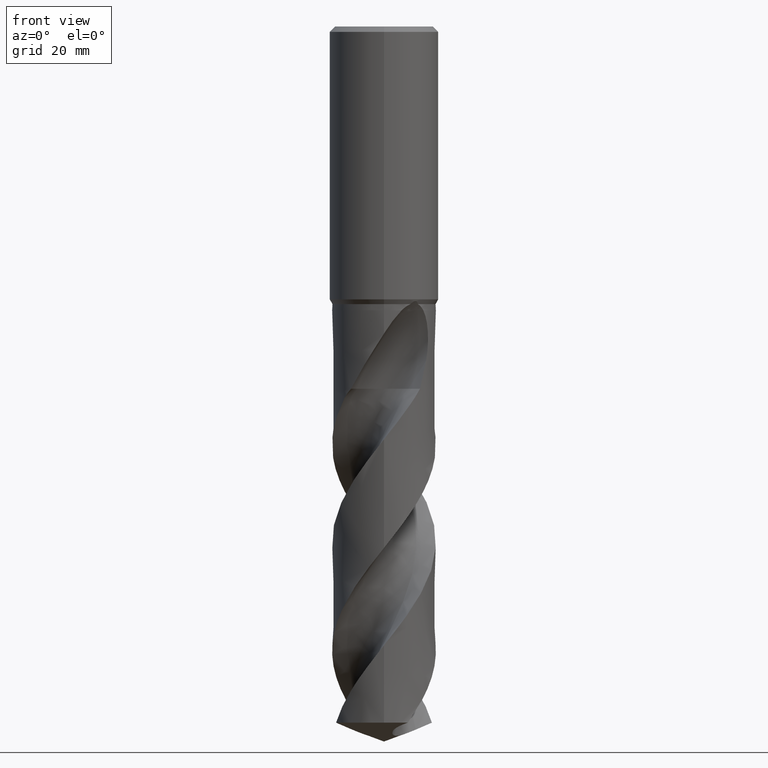
[diagram: clean part render]
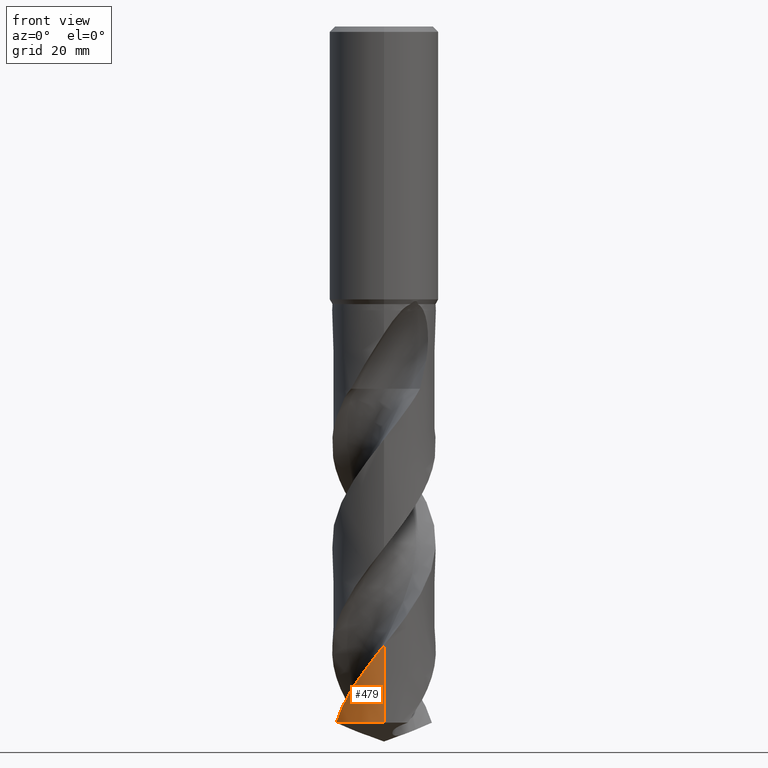
[diagram: same view with one face highlighted and labeled with its STEP entity id]
A machine part, front view. The second image highlights one B-rep face of the part: STEP entity #479.
In plain terms, the highlighted conical surface has half-angle 0 deg.
Its self-contained STEP definition (entity closure, byte-faithful):
#321=EDGE_CURVE('',#641,#747,#835,.T.);
#323=EDGE_CURVE('',#747,#523,#837,.T.);
#479=ADVANCED_FACE('',(#1007),#1008,.T.);
#485=EDGE_CURVE('',#641,#523,#1014,.T.);
#523=VERTEX_POINT('',#1055);
#641=VERTEX_POINT('',#1186);
#747=VERTEX_POINT('',#1299);
#835=LINE('',#2308,#2309);
#837=B_SPLINE_CURVE_WITH_KNOTS('',3,(#2312,#2313,#2314,#2315,#2316,#2317,#2318,#2319,#2320,#2321,#2322,#2323,#2324,#2325,#2326,#2327,#2328,#2329,#2330,#2331,#2332,#2333,#2334,#2335,#2336,#2337,#2338,#2339,#2340,#2341,#2342,#2343,#2344,#2345,#2346,#2347,#2348,#2349,#2350,#2351,#2352,#2353,#2354,#2355,#2356,#2357,#2358,#2359,#2360,#2361,#2362,#2363,#2364,#2365,#2366,#2367,#2368,#2369,#2370,#2371,#2372,#2373,#2374,#2375,#2376,#2377,#2378,#2379,#2380,#2381,#2382,#2383,#2384,#2385,#2386,#2387,#2388,#2389,#2390,#2391,#2392,#2393,#2394,#2395,#2396,#2397,#2398,#2399,#2400,#2401,#2402,#2403,#2404,#2405),.UNSPECIFIED.,.F.,.F.,(4,2,2,2,2,2,2,2,2,2,2,2,2,2,2,2,2,2,2,2,2,2,2,2,2,2,2,2,2,2,2,2,2,2,2,2,2,2,2,2,2,2,2,2,2,2,4),(0.0,0.251873114745319,1.49003797662436,1.88508295611504,2.13092462729175,2.35716562531013,3.13353898619032,4.18013328612654,4.8391896154843,5.93775068866211,6.81496746771318,8.02790693801513,9.75036124954665,13.2764121119158,14.4454626413057,15.6066048524763,17.9265469814777,19.0963696375069,21.4109942116154,23.7401063518811,26.0705932205949,28.3953471666892,29.5638751434541,30.7172765029423,33.0360551046798,34.2055673908724,36.5191789956901,38.8491949944035,41.1763968547088,43.5015904945778,44.6696144105601,45.820993287927,48.1405526795639,49.3096704018559,51.6196709283864,53.9501572730986,56.2743507798361,58.600024314909,59.68138169211,60.6859259939135,64.4629973942198,65.8887789725559,68.392227658279,69.3331984067516,70.9795003736366,73.4517760775509,75.9230375517967),.UNSPECIFIED.);
#1007=FACE_OUTER_BOUND('',#4228,.T.);
#1008=CONICAL_SURFACE('',#4229,9.49995,1.32376195591355E-006);
#1014=CIRCLE('',#4244,9.5);
#1055=CARTESIAN_POINT('',(-8.77829669865339,-3.63201143588659,-127.542282774471));
#1186=CARTESIAN_POINT('',(1.16176566323862E-015,-9.5,-127.542282774471));
#1299=CARTESIAN_POINT('',(1.56799148186068E-014,-9.49998125251191,-113.380002318758));
#2308=CARTESIAN_POINT('',(1.16175954020685E-015,-9.49995,-89.7711413872355));
#2309=VECTOR('',#5714,1.0);
#2312=CARTESIAN_POINT('',(-6.60317748529335,6.82982492497779,-66.369));
#2313=CARTESIAN_POINT('',(-6.56732896463211,6.86448393843007,-66.4365465215058));
#2314=CARTESIAN_POINT('',(-6.53115245772172,6.89891447528343,-66.504067560524));
#2315=CARTESIAN_POINT('',(-6.31491153119111,7.10147783278723,-66.9030783631882));
#2316=CARTESIAN_POINT('',(-6.12978802051606,7.26225138847447,-67.225166283119));
#2317=CARTESIAN_POINT('',(-5.86478478241706,7.47392289166335,-67.6554609278217));
#2318=CARTESIAN_POINT('',(-5.79982235770281,7.52445502014539,-67.7588390470493));
#2319=CARTESIAN_POINT('',(-5.69263840200485,7.60559187487801,-67.9264725840121));
#2320=CARTESIAN_POINT('',(-5.65119667331119,7.63643642634561,-67.9905997011124));
#2321=CARTESIAN_POINT('',(-5.57092280035602,7.69516709509626,-68.1136881015298));
#2322=CARTESIAN_POINT('',(-5.53220069959387,7.72305285628719,-68.1725699291273));
#2323=CARTESIAN_POINT('',(-5.35943519596365,7.84549903435116,-68.4335023069995));
#2324=CARTESIAN_POINT('',(-5.223577808885,7.93666342126009,-68.6347568907285));
#2325=CARTESIAN_POINT('',(-4.89238725613242,8.14639367297698,-69.1219739842731));
#2326=CARTESIAN_POINT('',(-4.70046423870064,8.25854854144445,-69.4013125337165));
#2327=CARTESIAN_POINT('',(-4.38139139414728,8.43039547211335,-69.861322458339));
#2328=CARTESIAN_POINT('',(-4.25674873951694,8.4940094764569,-70.0396320764643));
#2329=CARTESIAN_POINT('',(-3.92093419463609,8.65616358943372,-70.5145064642179));
#2330=CARTESIAN_POINT('',(-3.70713195136983,8.74987848816062,-70.8110692273253));
#2331=CARTESIAN_POINT('',(-3.3161625420964,8.90429584709822,-71.3434772458968));
#2332=CARTESIAN_POINT('',(-3.14080204602096,8.96765527605901,-71.5785590650312));
#2333=CARTESIAN_POINT('',(-2.71796832550692,9.10647865854467,-72.1400085106308));
#2334=CARTESIAN_POINT('',(-2.46950387412205,9.17696958552703,-72.4655141253206));
#2335=CARTESIAN_POINT('',(-1.86220314811729,9.32282948984543,-73.2544406543365));
#2336=CARTESIAN_POINT('',(-1.50154171281122,9.38764179667307,-73.7180482679948));
#2337=CARTESIAN_POINT('',(-0.394982224153874,9.52120681604962,-75.1295685211574));
#2338=CARTESIAN_POINT('',(0.356824110620436,9.52277616876354,-76.0740020629149));
#2339=CARTESIAN_POINT('',(1.34820699470703,9.40706326233914,-77.3357970957648));
#2340=CARTESIAN_POINT('',(1.5938064241418,9.36857869882808,-77.6498578442771));
#2341=CARTESIAN_POINT('',(2.07972503470747,9.27277805156567,-78.2761642780358));
#2342=CARTESIAN_POINT('',(2.31982935373545,9.21563886960738,-78.5881102020836));
#2343=CARTESIAN_POINT('',(3.0320026259064,9.01657466987166,-79.524144337267));
#2344=CARTESIAN_POINT('',(3.49569350105118,8.84714670114994,-80.1475236755133));
#2345=CARTESIAN_POINT('',(4.17037865470841,8.53923752251155,-81.0857114486814));
#2346=CARTESIAN_POINT('',(4.39245356293851,8.42716142376315,-81.4000029927528));
#2347=CARTESIAN_POINT('',(5.04020700830114,8.06767292430898,-82.3364983064907));
#2348=CARTESIAN_POINT('',(5.4511136893381,7.79589854592869,-82.9574647369352));
#2349=CARTESIAN_POINT('',(6.22930347603858,7.18954244353191,-84.2062106372369));
#2350=CARTESIAN_POINT('',(6.59538294715621,6.85528969271583,-84.8316864138778));
#2351=CARTESIAN_POINT('',(7.27249029461201,6.13231431710433,-86.0842208862128));
#2352=CARTESIAN_POINT('',(7.58223408804789,5.74489928339091,-86.7091394679847));
#2353=CARTESIAN_POINT('',(8.13770281569514,4.92653642859887,-87.9610206923176));
#2354=CARTESIAN_POINT('',(8.38287579525247,4.49673548508192,-88.5855420175262));
#2355=CARTESIAN_POINT('',(8.69942968048037,3.82500575465767,-89.5246872623625));
#2356=CARTESIAN_POINT('',(8.79647904779454,3.59621219548063,-89.8386358542054));
#2357=CARTESIAN_POINT('',(8.9712982684012,3.13448894035594,-90.4627654590569));
#2358=CARTESIAN_POINT('',(9.04919641962868,2.90193084875982,-90.7725805173435));
#2359=CARTESIAN_POINT('',(9.25632906731173,2.19369687091724,-91.7063066903079));
#2360=CARTESIAN_POINT('',(9.3576638750397,1.7106109698049,-92.3294857742792));
#2361=CARTESIAN_POINT('',(9.45303066941636,0.975269987537503,-93.2674755374684));
#2362=CARTESIAN_POINT('',(9.47532036044268,0.727528844098924,-93.5817595984354));
#2363=CARTESIAN_POINT('',(9.51267928342853,-0.0122039915376028,-94.5181383291233));
#2364=CARTESIAN_POINT('',(9.49927821860271,-0.504555295613595,-95.1391219631244));
#2365=CARTESIAN_POINT('',(9.39609475054517,-1.4858455165105,-96.3881236003335));
#2366=CARTESIAN_POINT('',(9.30589105589529,-1.97359658343492,-97.0139164825064));
#2367=CARTESIAN_POINT('',(9.05026974719046,-2.93031538429743,-98.2660440311541));
#2368=CARTESIAN_POINT('',(8.88542396815439,-3.39751258289831,-98.8902741873441));
#2369=CARTESIAN_POINT('',(8.48479619997015,-4.30135953488037,-100.141667161981));
#2370=CARTESIAN_POINT('',(8.24957210198785,-4.73690907101145,-100.76640091437));
#2371=CARTESIAN_POINT('',(7.84675177390621,-5.36092471573631,-101.705709951034));
#2372=CARTESIAN_POINT('',(7.70391567079431,-5.56423826322275,-102.019582741508));
#2373=CARTESIAN_POINT('',(7.40474492906798,-5.95643233548153,-102.64316305941));
#2374=CARTESIAN_POINT('',(7.24881333060935,-6.1452403210145,-102.952532305363));
#2375=CARTESIAN_POINT('',(6.75740732261694,-6.69551544288399,-103.886133384966));
#2376=CARTESIAN_POINT('',(6.40082293559544,-7.03719456896029,-104.509604937484));
#2377=CARTESIAN_POINT('',(5.82696935196307,-7.50717395559906,-105.447864507728));
#2378=CARTESIAN_POINT('',(5.6285202893117,-7.65709104777221,-105.762096012885));
#2379=CARTESIAN_POINT('',(5.02103331745221,-8.07960953074369,-106.697574496804));
#2380=CARTESIAN_POINT('',(4.59668537864519,-8.32832477792973,-107.317810219376));
#2381=CARTESIAN_POINT('',(3.70980019842474,-8.75969279029778,-108.566195187211));
#2382=CARTESIAN_POINT('',(3.24797929964719,-8.94124350540374,-109.192181617662));
#2383=CARTESIAN_POINT('',(2.30116509934592,-9.23030610010922,-110.443831510364));
#2384=CARTESIAN_POINT('',(1.81802722280053,-9.33747184853559,-111.067430069856));
#2385=CARTESIAN_POINT('',(0.83946654860684,-9.47571853521388,-112.318392138256));
#2386=CARTESIAN_POINT('',(0.345233219546849,-9.50657974256949,-112.943345390371));
#2387=CARTESIAN_POINT('',(-0.379223082398416,-9.49519504516363,-113.8596450178));
#2388=CARTESIAN_POINT('',(-0.608975397304745,-9.48323352950569,-114.150306563073));
#2389=CARTESIAN_POINT('',(-1.05093303105748,-9.44409200438642,-114.711218262053));
#2390=CARTESIAN_POINT('',(-1.26301686630188,-9.41807247849306,-114.981189794455));
#2391=CARTESIAN_POINT('',(-2.26734628432164,-9.26033278853209,-116.267489096135));
#2392=CARTESIAN_POINT('',(-3.04199808248969,-9.03558041162184,-117.280417848942));
#2393=CARTESIAN_POINT('',(-4.05754435369236,-8.59523836043132,-118.679638596713));
#2394=CARTESIAN_POINT('',(-4.32978690798932,-8.46136040047058,-119.062672249053));
#2395=CARTESIAN_POINT('',(-5.06094150209156,-8.05729315787564,-120.1199671873));
#2396=CARTESIAN_POINT('',(-5.50442310293738,-7.76109806822156,-120.793101425136));
#2397=CARTESIAN_POINT('',(-6.07730713022987,-7.30453571837521,-121.71982111246));
#2398=CARTESIAN_POINT('',(-6.22985778810328,-7.17487350704972,-121.972879535836));
#2399=CARTESIAN_POINT('',(-6.63779909921552,-6.8053052987379,-122.668832975152));
#2400=CARTESIAN_POINT('',(-6.88414069887218,-6.55599902388618,-123.111167489716));
#2401=CARTESIAN_POINT('',(-7.46452412273043,-5.89977455102454,-124.21920839664));
#2402=CARTESIAN_POINT('',(-7.7795467921135,-5.47767801525377,-124.882932258801));
#2403=CARTESIAN_POINT('',(-8.33632943135287,-4.58603566152112,-126.213228670419));
#2404=CARTESIAN_POINT('',(-8.57727900509367,-4.11785368240793,-126.877483332061));
#2405=CARTESIAN_POINT('',(-8.77829669865343,-3.63201143588652,-127.542282774471));
#4228=EDGE_LOOP('',(#5901,#5902,#5903));
#4229=AXIS2_PLACEMENT_3D('',#5904,#5905,#5906);
#4244=AXIS2_PLACEMENT_3D('',#5908,#5909,#5910);
#5714=DIRECTION('',(-1.6210873021596E-022,1.32376195591317E-006,0.999999999999124));
#5901=ORIENTED_EDGE('',*,*,#321,.T.);
#5902=ORIENTED_EDGE('',*,*,#323,.T.);
#5903=ORIENTED_EDGE('',*,*,#485,.F.);
#5904=CARTESIAN_POINT('',(0.0,0.0,-89.7711413872355));
#5905=DIRECTION('',(0.0,-0.0,-1.0));
#5906=DIRECTION('',(0.0,1.0,0.0));
#5908=CARTESIAN_POINT('',(0.0,0.0,-127.542282774471));
#5909=DIRECTION('',(0.0,0.0,-1.0));
#5910=DIRECTION('',(0.0,1.0,0.0));